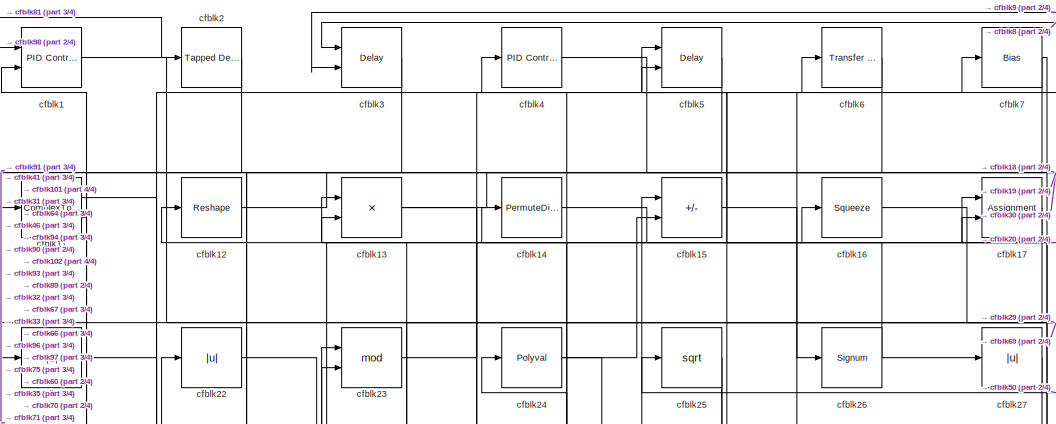
[diagram: root canvas - part 1/4, top center region]
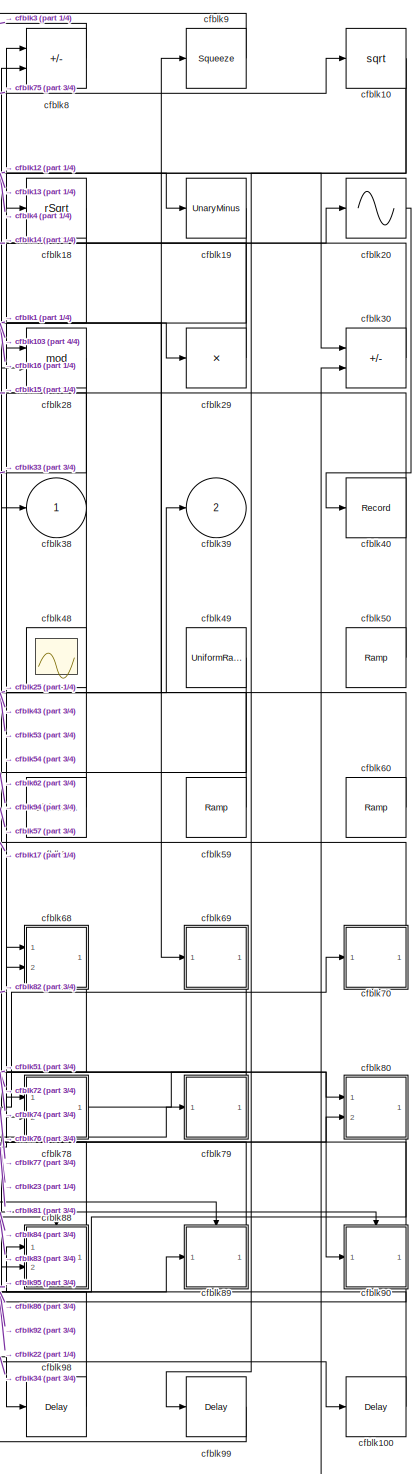
[diagram: root canvas - part 2/4, right side, full height]
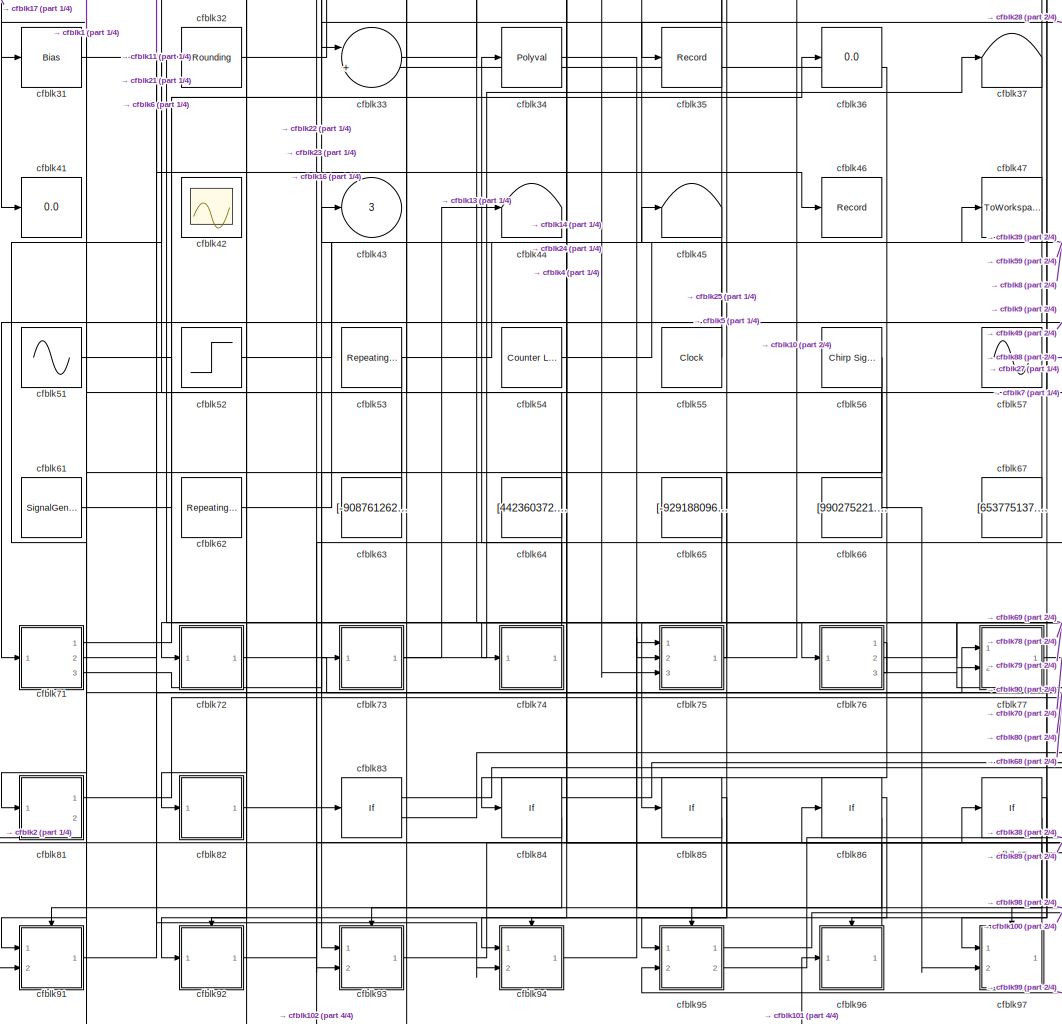
[diagram: root canvas - part 3/4, central region]
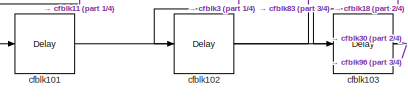
[diagram: root canvas - part 4/4, bottom left region]
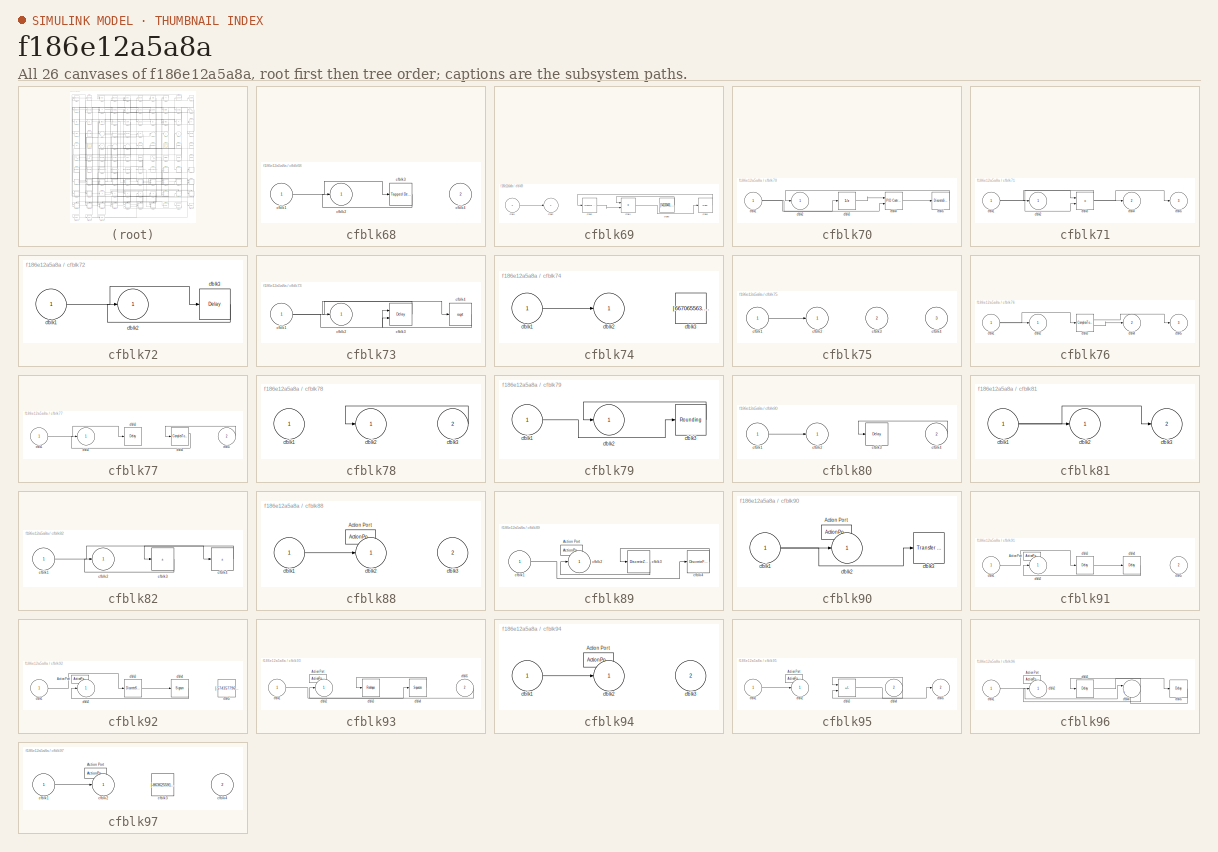
[diagram: thumbnail index - all 26 canvases of the model, root first then tree order]
MODEL slx_f186e12a5a8a
KIND model
CONFIG AbsTol = auto
CONFIG EnableMultiTasking = off
CONFIG FixedStep = auto
CONFIG MaxStep = auto
CONFIG MinStep = auto
CONFIG RelTol = 1e-3
CONFIG SampleTimeConstraint = Unconstrained
CONFIG SolverName = VariableStepAuto
CONFIG StartTime = 0.0
CONFIG StopTime = 10.0
BLOCK [Reference] cfblk1  REF=slpidlib/PID Controller (2DOF)
  Ports = [2, 1]
  SourceBlock = slpidlib/PID Controller (2DOF)
  SourceProductBaseCode = SL
  SourceType = PID 2dof
BLOCK [Sqrt] cfblk10
BLOCK [Delay] cfblk100
  InputPortMap = u0
  Ports = [1, 1]
  SampleTime = 1
BLOCK [Delay] cfblk101
  InputPortMap = u0
  Ports = [1, 1]
  SampleTime = 1
BLOCK [Delay] cfblk102
  InputPortMap = u0
  Ports = [1, 1]
  SampleTime = 1
BLOCK [Delay] cfblk103
  InputPortMap = u0
  Ports = [1, 1]
  SampleTime = 1
BLOCK [ComplexToRealImag] cfblk11
  Ports = [1, 2]
BLOCK [Reshape] cfblk12
  Ports = [1, 1]
BLOCK [Product] cfblk13
  Ports = [2, 1]
BLOCK [PermuteDimensions] cfblk14
BLOCK [Sum] cfblk15
  IconShape = rectangular
  Inputs = -+
  Ports = [2, 1]
BLOCK [Squeeze] cfblk16
BLOCK [Assignment] cfblk17
  DiagnosticForDimensions = Warning
  IndexOptions = Index vector (dialog)
  Indices = 1
  OutputSizes = 1
  Ports = [2, 1]
BLOCK [Sqrt] cfblk18
  AlgorithmType = Newton-Raphson
  Operator = rSqrt
BLOCK [UnaryMinus] cfblk19
BLOCK [Reference] cfblk2  REF=simulink/Discrete/Tapped Delay
  Ports = [1, 1]
  SourceBlock = simulink/Discrete/Tapped Delay
  SourceProductBaseCode = SL
  SourceType = Tapped Delay Line
BLOCK [Sin] cfblk20
  Ports = [1, 1]
  SampleTime = 0
  TimeSource = Use external signal
BLOCK [Abs] cfblk21
  SaturateOnIntegerOverflow = off
BLOCK [Abs] cfblk22
  SaturateOnIntegerOverflow = off
BLOCK [Math] cfblk23
  Operator = mod
  Ports = [2, 1]
BLOCK [Polyval] cfblk24
  Coefs = [ +2.081618890e-019, -1.441693666e-014, +4.719686976e-010, -8.536869453e-006, +1.621573104e-001, -8.087801117e+001 ]
BLOCK [Sqrt] cfblk25
BLOCK [Signum] cfblk26
BLOCK [Abs] cfblk27
  SaturateOnIntegerOverflow = off
BLOCK [Math] cfblk28
  Operator = mod
  Ports = [2, 1]
BLOCK [Product] cfblk29
  Inputs = *
  Ports = [1, 1]
BLOCK [Delay] cfblk3
  InputPortMap = u0,e6
  Ports = [2, 1]
  SampleTime = 1
  ShowEnablePort = on
BLOCK [Sum] cfblk30
  IconShape = rectangular
  Inputs = +-
  Ports = [2, 1]
BLOCK [Bias] cfblk31
  Bias = [-34971308.678982]
  SaturateOnIntegerOverflow = off
BLOCK [Rounding] cfblk32
BLOCK [Sum] cfblk33
  Inputs = |++
  Ports = [2, 1]
BLOCK [Polyval] cfblk34
  Coefs = [ +2.081618890e-019, -1.441693666e-014, +4.719686976e-010, -8.536869453e-006, +1.621573104e-001, -8.087801117e+001 ]
BLOCK [Record] cfblk35
  FileSettingsInternal = {"entries":[{"content":{"excelSettings":{"content":{},"type":"Streamout.ExcelSettings"}},"type":"Streamout.FileSettingStorage","uuid":"16fe7588-171d-4433-9593-ebc7fb32ed17"}],"packageUris":["http://schema.mathworks.com/mf0/streamout_blocks/R2020a"],"version":"1.0"}
  Ports = [1]
  SignalsInternal = {"entries":[{"content":{"signals":[{"content":{"blockPath":["sampleModel232/cfblk35"],"channel":[],"dimensions":[1],"domain":"sampleModel232/cfblk35","lineColor":"#ff6929","plots":[1],"port":1,"sid":[""],"signalID":9135,"signalName":"cfblk25"},"type":"RecordBlkView.Signal","uuid":"2eec1ae0-d335-4178-83e4-c7d2b4e411f4"}]},"type":"RecordBlkView.InputSignals","uuid":"9f3df593-7b50-41bb-8005-8753dcf33...<+97ch>
  VisualizationBindings = {"sparklinesplugin":{"info":[{"bindingParametersList":[],"subplotID":1}]}}
BLOCK [Display] cfblk36
  Decimation = 1
  Ports = [1]
BLOCK [Terminator] cfblk37
BLOCK [Outport] cfblk38
BLOCK [Outport] cfblk39
  Port = 2
BLOCK [Reference] cfblk4  REF=slpidlib/PID Controller
  Ports = [1, 1]
  SourceBlock = slpidlib/PID Controller
  SourceProductBaseCode = SL
  SourceType = PID 1dof
BLOCK [Record] cfblk40
  FileSettingsInternal = {"entries":[{"content":{"excelSettings":{"content":{},"type":"Streamout.ExcelSettings"}},"type":"Streamout.FileSettingStorage","uuid":"38fde572-acd1-41f4-bd4f-f8c5a046ea04"}],"packageUris":["http://schema.mathworks.com/mf0/streamout_blocks/R2020a"],"version":"1.0"}
  Ports = [1]
  SignalsInternal = {"entries":[{"content":{"signals":[{"content":{"blockPath":["sampleModel232/cfblk40"],"channel":[],"dimensions":[1,1],"domain":"sampleModel232/cfblk40","lineColor":"#b746ff","plots":[1],"port":1,"sid":[""],"signalID":9139,"signalName":"cfblk20"},"type":"RecordBlkView.Signal","uuid":"00039949-2aab-479e-a4e6-845a35bec5f1"}]},"type":"RecordBlkView.InputSignals","uuid":"6f56bbc5-1270-4389-943e-16f85e3...<+99ch>
  VisualizationBindings = {"sparklinesplugin":{"info":[{"bindingParametersList":[],"subplotID":1}]}}
BLOCK [Display] cfblk41
  Decimation = 1
  Ports = [1]
BLOCK [Scope] cfblk42
  Floating = on
  NumInputPorts = 1
  Ports = []
BLOCK [Outport] cfblk43
  Port = 3
BLOCK [Terminator] cfblk44
BLOCK [Terminator] cfblk45
BLOCK [Record] cfblk46
  FileSettingsInternal = {"entries":[{"content":{"excelSettings":{"content":{},"type":"Streamout.ExcelSettings"}},"type":"Streamout.FileSettingStorage","uuid":"14fcbd9d-bac8-4dc1-8b82-4cc51f23d5c0"}],"packageUris":["http://schema.mathworks.com/mf0/streamout_blocks/R2020a"],"version":"1.0"}
  Ports = [1]
  SignalsInternal = {"entries":[{"content":{"signals":[{"content":{"blockPath":["sampleModel232/cfblk46"],"channel":[],"dimensions":[1],"domain":"sampleModel232/cfblk46","lineColor":"#64d413","plots":[1],"port":1,"sid":[""],"signalID":9143,"signalName":"cfblk21"},"type":"RecordBlkView.Signal","uuid":"5c7e960c-d979-495a-80ca-2dc05e47916f"}]},"type":"RecordBlkView.InputSignals","uuid":"40783f06-613e-4da5-a4b1-e85038e25...<+97ch>
  VisualizationBindings = {"sparklinesplugin":{"info":[{"bindingParametersList":[],"subplotID":1}]}}
BLOCK [ToWorkspace] cfblk47
  FixptAsFi = on
  MaxDataPoints = inf
  Ports = [1]
  SampleTime = -1
  SaveFormat = Timeseries
  VariableName = vfmndiy
BLOCK [Scope] cfblk48
  Floating = on
  NumInputPorts = 1
  Ports = []
BLOCK [UniformRandomNumber] cfblk49
  Maximum = [9416126796.491138]
  Minimum = [-6531070159.920979]
  SampleTime = 0.1
  Seed = [69575523.000000]
BLOCK [Delay] cfblk5
  DelayLengthSource = Input port
  InputPortMap = u0,p1
  Ports = [2, 1]
  SampleTime = 1
BLOCK [Reference] cfblk50  REF=simulink/Sources/Ramp
  Ports = [0, 1]
  SourceBlock = simulink/Sources/Ramp
  SourceProductBaseCode = SL
  SourceType = Ramp
BLOCK [Sin] cfblk51
  Amplitude = [660836830.199607]
  Bias = [-337757806.375018]
  Ports = [0, 1]
  SampleTime = 0
BLOCK [Step] cfblk52
  After = [252133215.622026]
  Before = [-35343837.291775]
  SampleTime = 0
  Time = [5.000000]
BLOCK [Reference] cfblk53  REF=simulink/Sources/Repeating
Sequence
Interpolated
  Ports = [0, 1]
  SourceBlock = simulink/Sources/Repeating\nSequence\nInterpolated
  SourceProductBaseCode = SL
  SourceType = Repeating Sequence Interpolated
BLOCK [Reference] cfblk54  REF=simulink/Sources/Counter
Limited
  Ports = [0, 1]
  SourceBlock = simulink/Sources/Counter\nLimited
  SourceProductBaseCode = SL
  SourceType = Counter Limited
BLOCK [Clock] cfblk55
BLOCK [Reference] cfblk56  REF=simulink/Sources/Chirp Signal
  Ports = [0, 1]
  SourceBlock = simulink/Sources/Chirp Signal
  SourceProductBaseCode = SL
  SourceType = chirp
BLOCK [Sin] cfblk57
  Amplitude = [242398372.769042]
  Bias = [-91557625.579191]
  Ports = [0, 1]
  SampleTime = 0
BLOCK [DigitalClock] cfblk58
BLOCK [Reference] cfblk59  REF=simulink/Sources/Ramp
  Ports = [0, 1]
  SourceBlock = simulink/Sources/Ramp
  SourceProductBaseCode = SL
  SourceType = Ramp
BLOCK [Reference] cfblk6  REF=simulink/Discrete/Transfer Fcn
First Order
  Ports = [1, 1]
  SourceBlock = simulink/Discrete/Transfer Fcn\nFirst Order
  SourceProductBaseCode = SL
  SourceType = First Order Transfer Fcn
BLOCK [Reference] cfblk60  REF=simulink/Sources/Ramp
  Ports = [0, 1]
  SourceBlock = simulink/Sources/Ramp
  SourceProductBaseCode = SL
  SourceType = Ramp
BLOCK [SignalGenerator] cfblk61
  Amplitude = [-206501216.018369]
  Ports = [0, 1]
  WaveForm = square
BLOCK [Reference] cfblk62  REF=simulink/Sources/Repeating
Sequence
Stair
  Ports = [0, 1]
  SourceBlock = simulink/Sources/Repeating\nSequence\nStair
  SourceProductBaseCode = SL
  SourceType = Repeating Sequence Stair
BLOCK [Constant] cfblk63
  SampleTime = 1
  Value = [-908761262.849597]
BLOCK [Constant] cfblk64
  SampleTime = 1
  Value = [442360372.104115]
BLOCK [Constant] cfblk65
  SampleTime = 1
  Value = [-929188096.588494]
BLOCK [Constant] cfblk66
  SampleTime = 1
  Value = [990275221.754341]
BLOCK [Constant] cfblk67
  SampleTime = 1
  Value = [653775137.266620]
BLOCK [SubSystem] cfblk68
  Ports = [2, 1]
  RequestExecContextInheritance = off
BLOCK [Inport] cfblk68/cfblk1
BLOCK [Outport] cfblk68/cfblk2
BLOCK [Reference] cfblk68/cfblk3  REF=simulink/Discrete/Tapped Delay
  Ports = [1, 1]
  SourceBlock = simulink/Discrete/Tapped Delay
  SourceProductBaseCode = SL
  SourceType = Tapped Delay Line
BLOCK [Inport] cfblk68/cfblk4
  Port = 2
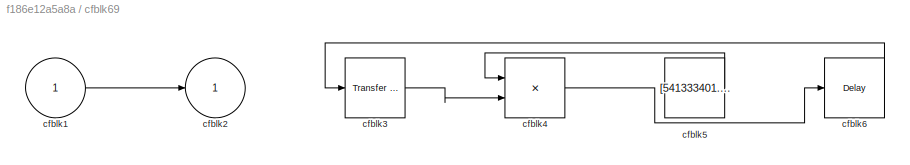
BLOCK [SubSystem] cfblk69
  Ports = [1, 1]
  RequestExecContextInheritance = off
BLOCK [Inport] cfblk69/cfblk1
BLOCK [Outport] cfblk69/cfblk2
BLOCK [Reference] cfblk69/cfblk3  REF=simulink/Discrete/Transfer Fcn
Lead or Lag
  Ports = [1, 1]
  SourceBlock = simulink/Discrete/Transfer Fcn\nLead or Lag
  SourceProductBaseCode = SL
  SourceType = Lead or Lag Compensator
BLOCK [Product] cfblk69/cfblk4
  Ports = [2, 1]
BLOCK [Constant] cfblk69/cfblk5
  SampleTime = 1
  Value = [541333401.811970]
BLOCK [Delay] cfblk69/cfblk6
  InputPortMap = u0
  Ports = [1, 1]
  SampleTime = 1
BLOCK [Bias] cfblk7
  Bias = [837789353.232907]
  SaturateOnIntegerOverflow = off
BLOCK [SubSystem] cfblk70
  Ports = [1, 1]
  RequestExecContextInheritance = off
BLOCK [Inport] cfblk70/cfblk1
BLOCK [Outport] cfblk70/cfblk2
BLOCK [UnitDelay] cfblk70/cfblk3
  HasFrameUpgradeWarning = on
BLOCK [Reference] cfblk70/cfblk4  REF=slpidlib/PID Controller (2DOF)
  Ports = [2, 1]
  SourceBlock = slpidlib/PID Controller (2DOF)
  SourceProductBaseCode = SL
  SourceType = PID 2dof
BLOCK [DiscreteStateSpace] cfblk70/cfblk5
BLOCK [SubSystem] cfblk71
  Ports = [1, 3]
  RequestExecContextInheritance = off
BLOCK [Inport] cfblk71/cfblk1
BLOCK [Outport] cfblk71/cfblk2
BLOCK [Product] cfblk71/cfblk3
  Ports = [2, 1]
BLOCK [Outport] cfblk71/cfblk4
  Port = 2
BLOCK [Outport] cfblk71/cfblk5
  Port = 3
BLOCK [SubSystem] cfblk72
  Ports = [1, 1]
  RequestExecContextInheritance = off
BLOCK [Inport] cfblk72/cfblk1
BLOCK [Outport] cfblk72/cfblk2
BLOCK [Delay] cfblk72/cfblk3
  InputPortMap = u0
  Ports = [1, 1]
  SampleTime = 1
BLOCK [SubSystem] cfblk73
  Ports = [1, 1]
  RequestExecContextInheritance = off
BLOCK [Inport] cfblk73/cfblk1
BLOCK [Outport] cfblk73/cfblk2
BLOCK [Delay] cfblk73/cfblk3
  InputPortMap = u0,e6
  Ports = [2, 1]
  SampleTime = 1
  ShowEnablePort = on
BLOCK [Sqrt] cfblk73/cfblk4
BLOCK [SubSystem] cfblk74
  Ports = [1, 1]
  RequestExecContextInheritance = off
BLOCK [Inport] cfblk74/cfblk1
BLOCK [Outport] cfblk74/cfblk2
BLOCK [Constant] cfblk74/cfblk3
  SampleTime = 1
  Value = [667065563.085386]
BLOCK [SubSystem] cfblk75
  Ports = [3, 1]
  RequestExecContextInheritance = off
BLOCK [Inport] cfblk75/cfblk1
BLOCK [Outport] cfblk75/cfblk2
BLOCK [Inport] cfblk75/cfblk3
  Port = 2
BLOCK [Inport] cfblk75/cfblk4
  Port = 3
BLOCK [SubSystem] cfblk76
  Ports = [1, 3]
  RequestExecContextInheritance = off
BLOCK [Inport] cfblk76/cfblk1
BLOCK [Outport] cfblk76/cfblk2
BLOCK [ComplexToRealImag] cfblk76/cfblk3
  Ports = [1, 2]
BLOCK [Outport] cfblk76/cfblk4
  Port = 2
BLOCK [Outport] cfblk76/cfblk5
  Port = 3
BLOCK [SubSystem] cfblk77
  Ports = [2, 1]
  RequestExecContextInheritance = off
BLOCK [Inport] cfblk77/cfblk1
BLOCK [Outport] cfblk77/cfblk2
BLOCK [Delay] cfblk77/cfblk3
  InputPortMap = u0
  Ports = [1, 1]
  SampleTime = 1
BLOCK [ComplexToMagnitudeAngle] cfblk77/cfblk4
  Ports = [1, 2]
BLOCK [Inport] cfblk77/cfblk5
  Port = 2
BLOCK [SubSystem] cfblk78
  Ports = [2, 1]
  RequestExecContextInheritance = off
BLOCK [Inport] cfblk78/cfblk1
BLOCK [Outport] cfblk78/cfblk2
BLOCK [Inport] cfblk78/cfblk3
  Port = 2
BLOCK [SubSystem] cfblk79
  Ports = [1, 1]
  RequestExecContextInheritance = off
BLOCK [Inport] cfblk79/cfblk1
BLOCK [Outport] cfblk79/cfblk2
BLOCK [Rounding] cfblk79/cfblk3
BLOCK [Sum] cfblk8
  IconShape = rectangular
  Inputs = +-
  Ports = [2, 1]
BLOCK [SubSystem] cfblk80
  Ports = [2, 1]
  RequestExecContextInheritance = off
BLOCK [Inport] cfblk80/cfblk1
BLOCK [Outport] cfblk80/cfblk2
BLOCK [Delay] cfblk80/cfblk3
  InputPortMap = u0
  Ports = [1, 1]
  SampleTime = 1
BLOCK [Inport] cfblk80/cfblk4
  Port = 2
BLOCK [SubSystem] cfblk81
  Ports = [1, 2]
  RequestExecContextInheritance = off
BLOCK [Inport] cfblk81/cfblk1
BLOCK [Outport] cfblk81/cfblk2
BLOCK [Outport] cfblk81/cfblk3
  Port = 2
BLOCK [SubSystem] cfblk82
  Ports = [1, 1]
  RequestExecContextInheritance = off
BLOCK [Inport] cfblk82/cfblk1
BLOCK [Outport] cfblk82/cfblk2
BLOCK [Sum] cfblk82/cfblk3
  IconShape = rectangular
  Inputs = +
  Ports = [1, 1]
BLOCK [Sum] cfblk82/cfblk4
  IconShape = rectangular
  Inputs = +
  Ports = [1, 1]
BLOCK [If] cfblk83
  IfExpression = u1 >= 0
  Ports = [1, 2]
  SampleTime = 1
BLOCK [If] cfblk84
  IfExpression = u1 >= 0
  Ports = [1, 2]
  SampleTime = 1
BLOCK [If] cfblk85
  IfExpression = u1 >= 0
  Ports = [1, 2]
  SampleTime = 1
BLOCK [If] cfblk86
  IfExpression = u1 >= 0
  Ports = [1, 2]
  SampleTime = 1
BLOCK [If] cfblk87
  IfExpression = u1 >= 0
  Ports = [1, 2]
  SampleTime = 1
BLOCK [SubSystem] cfblk88
  Ports = [2, 1, 0, 0, 0, 0, 0, 1]
  RequestExecContextInheritance = off
  TreatAsAtomicUnit = on
BLOCK [ActionPort] cfblk88/Action Port
  ActionPortLabel = if(u1 >= 0)
BLOCK [Inport] cfblk88/cfblk1
BLOCK [Outport] cfblk88/cfblk2
BLOCK [Inport] cfblk88/cfblk3
  Port = 2
BLOCK [SubSystem] cfblk89
  Ports = [1, 1, 0, 0, 0, 0, 0, 1]
  RequestExecContextInheritance = off
  TreatAsAtomicUnit = on
BLOCK [ActionPort] cfblk89/Action Port
  ActionPortLabel = else
BLOCK [Inport] cfblk89/cfblk1
BLOCK [Outport] cfblk89/cfblk2
BLOCK [DiscreteZeroPole] cfblk89/cfblk3
  Gain = 1
  Poles = [0 0.5]
  SampleTime = -1
BLOCK [DiscreteFilter] cfblk89/cfblk4
  InputPortMap = u0
  Ports = [1, 1]
BLOCK [Squeeze] cfblk9
BLOCK [SubSystem] cfblk90
  Ports = [1, 1, 0, 0, 0, 0, 0, 1]
  RequestExecContextInheritance = off
  TreatAsAtomicUnit = on
BLOCK [ActionPort] cfblk90/Action Port
  ActionPortLabel = if(u1 >= 0)
BLOCK [Inport] cfblk90/cfblk1
BLOCK [Outport] cfblk90/cfblk2
BLOCK [Reference] cfblk90/cfblk3  REF=simulink/Discrete/Transfer Fcn
Lead or Lag
  Ports = [1, 1]
  SourceBlock = simulink/Discrete/Transfer Fcn\nLead or Lag
  SourceProductBaseCode = SL
  SourceType = Lead or Lag Compensator
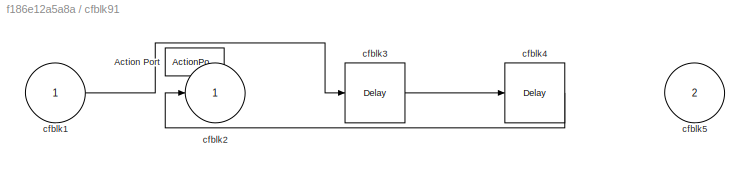
BLOCK [SubSystem] cfblk91
  Ports = [2, 1, 0, 0, 0, 0, 0, 1]
  RequestExecContextInheritance = off
  TreatAsAtomicUnit = on
BLOCK [ActionPort] cfblk91/Action Port
  ActionPortLabel = else
BLOCK [Inport] cfblk91/cfblk1
BLOCK [Outport] cfblk91/cfblk2
BLOCK [Delay] cfblk91/cfblk3
  InputPortMap = u0
  Ports = [1, 1]
BLOCK [Delay] cfblk91/cfblk4
  InputPortMap = u0
  Ports = [1, 1]
BLOCK [Inport] cfblk91/cfblk5
  Port = 2
BLOCK [SubSystem] cfblk92
  Ports = [1, 1, 0, 0, 0, 0, 0, 1]
  RequestExecContextInheritance = off
  TreatAsAtomicUnit = on
BLOCK [ActionPort] cfblk92/Action Port
  ActionPortLabel = if(u1 >= 0)
BLOCK [Inport] cfblk92/cfblk1
BLOCK [Outport] cfblk92/cfblk2
BLOCK [DiscreteStateSpace] cfblk92/cfblk3
  SampleTime = -1
BLOCK [Signum] cfblk92/cfblk4
BLOCK [Constant] cfblk92/cfblk5
  SampleTime = 1
  Value = [-574357796.643999]
BLOCK [SubSystem] cfblk93
  Ports = [2, 1, 0, 0, 0, 0, 0, 1]
  RequestExecContextInheritance = off
  TreatAsAtomicUnit = on
BLOCK [ActionPort] cfblk93/Action Port
  ActionPortLabel = else
BLOCK [Inport] cfblk93/cfblk1
BLOCK [Outport] cfblk93/cfblk2
BLOCK [Reshape] cfblk93/cfblk3
  Ports = [1, 1]
BLOCK [Squeeze] cfblk93/cfblk4
BLOCK [Inport] cfblk93/cfblk5
  Port = 2
BLOCK [SubSystem] cfblk94
  Ports = [2, 1, 0, 0, 0, 0, 0, 1]
  RequestExecContextInheritance = off
  TreatAsAtomicUnit = on
BLOCK [ActionPort] cfblk94/Action Port
  ActionPortLabel = if(u1 >= 0)
BLOCK [Inport] cfblk94/cfblk1
BLOCK [Outport] cfblk94/cfblk2
BLOCK [Inport] cfblk94/cfblk3
  Port = 2
BLOCK [SubSystem] cfblk95
  Ports = [2, 2, 0, 0, 0, 0, 0, 1]
  RequestExecContextInheritance = off
  TreatAsAtomicUnit = on
BLOCK [ActionPort] cfblk95/Action Port
  ActionPortLabel = else
BLOCK [Inport] cfblk95/cfblk1
BLOCK [Outport] cfblk95/cfblk2
BLOCK [Sum] cfblk95/cfblk3
  IconShape = rectangular
  Inputs = --
  Ports = [2, 1]
BLOCK [Inport] cfblk95/cfblk4
  Port = 2
BLOCK [Outport] cfblk95/cfblk5
  Port = 2
BLOCK [SubSystem] cfblk96
  Ports = [1, 1, 0, 0, 0, 0, 0, 1]
  RequestExecContextInheritance = off
  TreatAsAtomicUnit = on
BLOCK [ActionPort] cfblk96/Action Port
  ActionPortLabel = if(u1 >= 0)
BLOCK [Inport] cfblk96/cfblk1
BLOCK [Outport] cfblk96/cfblk2
BLOCK [Delay] cfblk96/cfblk3
  InputPortMap = u0
  Ports = [1, 1]
BLOCK [Sum] cfblk96/cfblk4
  Inputs = |++
  Ports = [2, 1]
BLOCK [Delay] cfblk96/cfblk5
  InputPortMap = u0
  Ports = [1, 1]
BLOCK [SubSystem] cfblk97
  Ports = [2, 1, 0, 0, 0, 0, 0, 1]
  RequestExecContextInheritance = off
  TreatAsAtomicUnit = on
BLOCK [ActionPort] cfblk97/Action Port
  ActionPortLabel = else
BLOCK [Inport] cfblk97/cfblk1
BLOCK [Outport] cfblk97/cfblk2
BLOCK [Constant] cfblk97/cfblk3
  SampleTime = 1
  Value = [-863625591.593459]
BLOCK [Inport] cfblk97/cfblk4
  Port = 2
BLOCK [Delay] cfblk98
  InputPortMap = u0
  Ports = [1, 1]
  SampleTime = 1
BLOCK [Delay] cfblk99
  InputPortMap = u0
  Ports = [1, 1]
  SampleTime = 1
LINE cfblk100:1 -> cfblk86:1
LINE cfblk101:1 -> cfblk96:1
LINE cfblk102:1 -> cfblk83:1
LINE cfblk103:1 -> cfblk30:2
NET cfblk10:1 -> cfblk82:1, cfblk99:1
LINE cfblk11:1 -> cfblk94:2
LINE cfblk11:2 -> cfblk101:1
LINE cfblk12:1 -> cfblk18:1
NET cfblk13:1 -> cfblk19:1, cfblk75:2
LINE cfblk14:1 -> cfblk20:1
LINE cfblk15:1 -> cfblk26:1
LINE cfblk16:1 -> cfblk69:1
LINE cfblk17:1 -> cfblk41:1
LINE cfblk18:1 -> cfblk103:1
LINE cfblk19:1 -> cfblk28:2
LINE cfblk1:1 -> cfblk29:1
LINE cfblk20:1 -> cfblk40:1
LINE cfblk21:1 -> cfblk46:1
LINE cfblk22:1 -> cfblk93:2
LINE cfblk23:1 -> cfblk17:2
NET cfblk24:1 -> cfblk15:2, cfblk75:3
NET cfblk25:1 -> cfblk35:1, cfblk81:1
NET cfblk26:1 -> cfblk27:1, cfblk5:1
LINE cfblk27:1 -> cfblk71:1
LINE cfblk28:1 -> cfblk33:1
LINE cfblk29:1 -> cfblk13:2
LINE cfblk2:1 -> cfblk31:1
LINE cfblk30:1 -> cfblk12:1
LINE cfblk31:1 -> cfblk76:1
LINE cfblk32:1 -> cfblk16:1
LINE cfblk33:1 -> cfblk7:1
LINE cfblk34:1 -> cfblk98:1
LINE cfblk3:1 -> cfblk102:1
LINE cfblk49:1 -> cfblk94:1
LINE cfblk4:1 -> cfblk30:1
LINE cfblk50:1 -> cfblk15:1
LINE cfblk51:1 -> cfblk90:1
LINE cfblk52:1 -> cfblk47:1
NET cfblk53:1 -> cfblk39:1, cfblk93:1
LINE cfblk54:1 -> cfblk8:2
LINE cfblk55:1 -> cfblk45:1
NET cfblk56:1 -> cfblk91:1, cfblk95:1
LINE cfblk57:1 -> cfblk88:2
LINE cfblk58:1 -> cfblk28:1
LINE cfblk59:1 -> cfblk43:1
LINE cfblk5:1 -> cfblk91:2
LINE cfblk60:1 -> cfblk25:1
LINE cfblk61:1 -> cfblk36:1
LINE cfblk62:1 -> cfblk9:1
LINE cfblk63:1 -> cfblk32:1
NET cfblk64:1 -> cfblk1:2, cfblk92:1
LINE cfblk65:1 -> cfblk85:1
NET cfblk66:1 -> cfblk4:1, cfblk97:2
LINE cfblk67:1 -> cfblk13:1
LINE cfblk68/cfblk1:1 -> cfblk68/cfblk3:1
LINE cfblk68/cfblk3:1 -> cfblk68/cfblk2:1
LINE cfblk68:1 -> cfblk74:1
LINE cfblk69/cfblk1:1 -> cfblk69/cfblk2:1
LINE cfblk69/cfblk3:1 -> cfblk69/cfblk4:2
LINE cfblk69/cfblk4:1 -> cfblk69/cfblk6:1
LINE cfblk69/cfblk5:1 -> cfblk69/cfblk4:1
LINE cfblk69/cfblk6:1 -> cfblk69/cfblk3:1
LINE cfblk69:1 -> cfblk77:2
LINE cfblk6:1 -> cfblk11:1
NET cfblk70/cfblk1:1 -> cfblk70/cfblk3:1, cfblk70/cfblk4:2
LINE cfblk70/cfblk3:1 -> cfblk70/cfblk4:1
LINE cfblk70/cfblk4:1 -> cfblk70/cfblk5:1
LINE cfblk70/cfblk5:1 -> cfblk70/cfblk2:1
LINE cfblk70:1 -> cfblk17:1
NET cfblk71/cfblk1:1 -> cfblk71/cfblk3:1, cfblk71/cfblk3:2
NET cfblk71/cfblk3:1 -> cfblk71/cfblk2:1, cfblk71/cfblk4:1, cfblk71/cfblk5:1
LINE cfblk71:1 -> cfblk23:2
LINE cfblk71:2 -> cfblk6:1
LINE cfblk71:3 -> cfblk73:1
LINE cfblk72/cfblk1:1 -> cfblk72/cfblk3:1
LINE cfblk72/cfblk3:1 -> cfblk72/cfblk2:1
LINE cfblk72:1 -> cfblk80:2
NET cfblk73/cfblk1:1 -> cfblk73/cfblk3:2, cfblk73/cfblk4:1
LINE cfblk73/cfblk3:1 -> cfblk73/cfblk2:1
LINE cfblk73/cfblk4:1 -> cfblk73/cfblk3:1
NET cfblk73:1 -> cfblk37:1, cfblk44:1
LINE cfblk74/cfblk1:1 -> cfblk74/cfblk2:1
LINE cfblk74:1 -> cfblk34:1
LINE cfblk75/cfblk1:1 -> cfblk75/cfblk2:1
NET cfblk75:1 -> cfblk10:1, cfblk5:2
NET cfblk76/cfblk1:1 -> cfblk76/cfblk2:1, cfblk76/cfblk3:1
LINE cfblk76/cfblk3:1 -> cfblk76/cfblk5:1
LINE cfblk76/cfblk3:2 -> cfblk76/cfblk4:1
LINE cfblk76:1 -> cfblk84:1
LINE cfblk76:2 -> cfblk78:1
NET cfblk76:3 -> cfblk33:2, cfblk79:1
LINE cfblk77/cfblk1:1 -> cfblk77/cfblk3:1
LINE cfblk77/cfblk4:1 -> cfblk77/cfblk2:1
LINE cfblk77/cfblk5:1 -> cfblk77/cfblk4:1
LINE cfblk77:1 -> cfblk70:1
LINE cfblk78/cfblk3:1 -> cfblk78/cfblk2:1
LINE cfblk78:1 -> cfblk80:1
LINE cfblk79/cfblk1:1 -> cfblk79/cfblk3:1
LINE cfblk79/cfblk3:1 -> cfblk79/cfblk2:1
LINE cfblk79:1 -> cfblk72:1
NET cfblk7:1 -> cfblk21:1, cfblk97:1
LINE cfblk80/cfblk1:1 -> cfblk80/cfblk2:1
LINE cfblk80/cfblk4:1 -> cfblk80/cfblk3:1
LINE cfblk80:1 -> cfblk88:1
NET cfblk81/cfblk1:1 -> cfblk81/cfblk2:1, cfblk81/cfblk3:1
LINE cfblk81:1 -> cfblk68:1
LINE cfblk81:2 -> cfblk2:1
LINE cfblk82/cfblk1:1 -> cfblk82/cfblk4:1
LINE cfblk82/cfblk3:1 -> cfblk82/cfblk2:1
LINE cfblk82/cfblk4:1 -> cfblk82/cfblk3:1
LINE cfblk82:1 -> cfblk68:2
LINE cfblk83:1 -> cfblk88:ifaction
LINE cfblk83:2 -> cfblk89:ifaction
LINE cfblk84:1 -> cfblk90:ifaction
LINE cfblk84:2 -> cfblk91:ifaction
LINE cfblk85:1 -> cfblk92:ifaction
LINE cfblk85:2 -> cfblk93:ifaction
LINE cfblk86:1 -> cfblk94:ifaction
LINE cfblk86:2 -> cfblk95:ifaction
LINE cfblk87:1 -> cfblk96:ifaction
LINE cfblk87:2 -> cfblk97:ifaction
LINE cfblk88/cfblk1:1 -> cfblk88/cfblk2:1
LINE cfblk88:1 -> cfblk8:1
LINE cfblk89/cfblk1:1 -> cfblk89/cfblk4:1
LINE cfblk89/cfblk3:1 -> cfblk89/cfblk2:1
LINE cfblk89/cfblk4:1 -> cfblk89/cfblk3:1
LINE cfblk89:1 -> cfblk23:1
LINE cfblk8:1 -> cfblk3:1
NET cfblk90/cfblk1:1 -> cfblk90/cfblk2:1, cfblk90/cfblk3:1
NET cfblk90:1 -> cfblk22:1, cfblk78:2
LINE cfblk91/cfblk1:1 -> cfblk91/cfblk3:1
LINE cfblk91/cfblk3:1 -> cfblk91/cfblk4:1
LINE cfblk91/cfblk4:1 -> cfblk91/cfblk2:1
LINE cfblk91:1 -> cfblk77:1
LINE cfblk92/cfblk1:1 -> cfblk92/cfblk3:1
LINE cfblk92/cfblk3:1 -> cfblk92/cfblk4:1
LINE cfblk92/cfblk4:1 -> cfblk92/cfblk2:1
LINE cfblk92:1 -> cfblk89:1
LINE cfblk93/cfblk1:1 -> cfblk93/cfblk4:1
LINE cfblk93/cfblk4:1 -> cfblk93/cfblk3:1
LINE cfblk93/cfblk5:1 -> cfblk93/cfblk2:1
LINE cfblk93:1 -> cfblk87:1
LINE cfblk94/cfblk1:1 -> cfblk94/cfblk2:1
LINE cfblk94:1 -> cfblk75:1
LINE cfblk95/cfblk1:1 -> cfblk95/cfblk2:1
LINE cfblk95/cfblk3:1 -> cfblk95/cfblk5:1
NET cfblk95/cfblk4:1 -> cfblk95/cfblk3:1, cfblk95/cfblk3:2
LINE cfblk95:1 -> cfblk100:1
LINE cfblk95:2 -> cfblk38:1
LINE cfblk96/cfblk1:1 -> cfblk96/cfblk4:1
LINE cfblk96/cfblk3:1 -> cfblk96/cfblk5:1
NET cfblk96/cfblk4:1 -> cfblk96/cfblk2:1, cfblk96/cfblk3:1
LINE cfblk96/cfblk5:1 -> cfblk96/cfblk4:2
LINE cfblk96:1 -> cfblk14:1
LINE cfblk97/cfblk1:1 -> cfblk97/cfblk2:1
LINE cfblk97:1 -> cfblk24:1
LINE cfblk98:1 -> cfblk1:1
LINE cfblk99:1 -> cfblk95:2
LINE cfblk9:1 -> cfblk3:2
note: NET lines group one-source signal fan-out (src -> all destinations, sorted); 1:1 wires keep LINE
